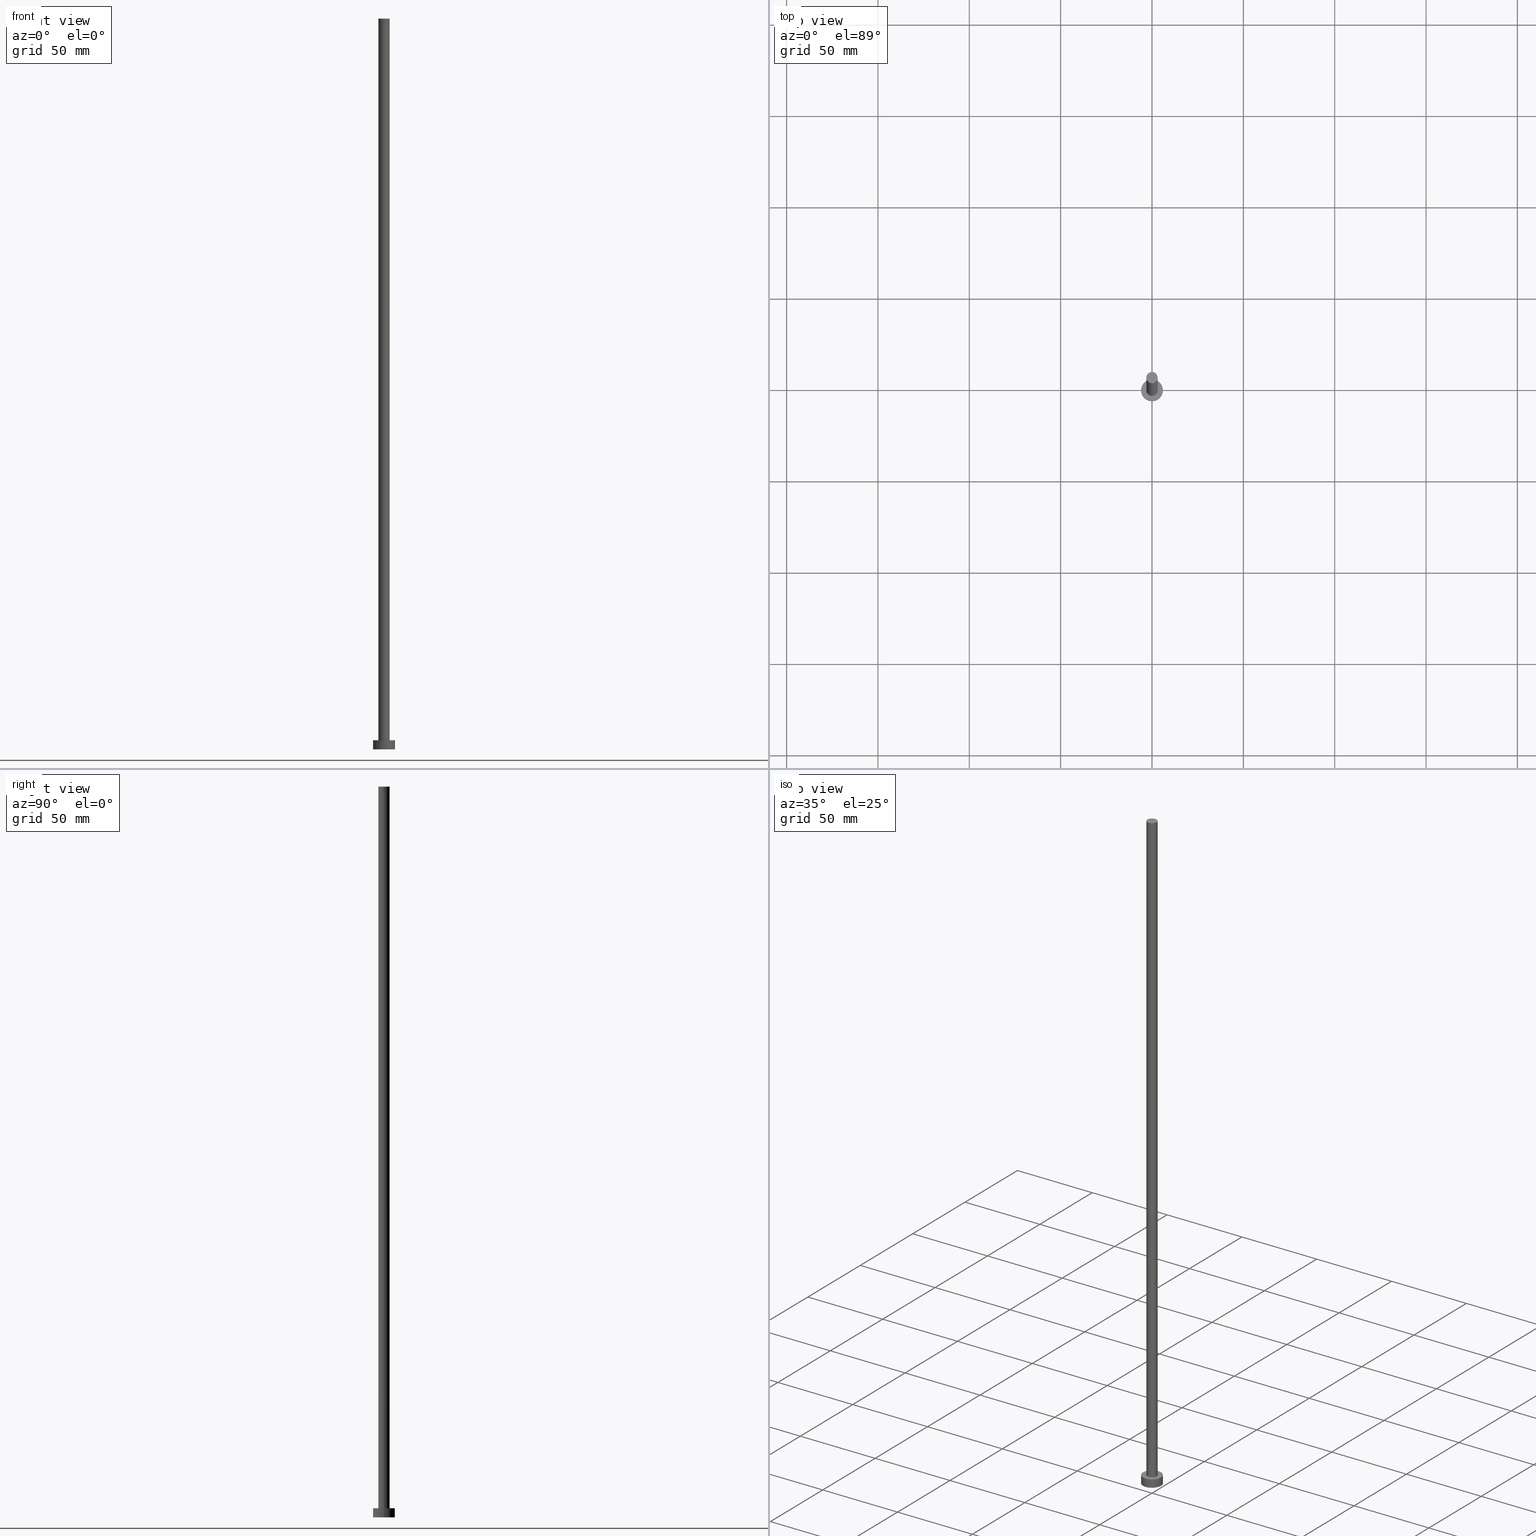
[diagram: canonical four-view strip — front | top / right | iso, engineering-drawing reading convention]
A machine part, canonical four-view strip (front | top / right | iso — engineering-drawing reading convention). The complete STEP part file that produces these views, byte-faithful:
ISO-10303-21;
HEADER;
FILE_DESCRIPTION (( 'STEP AP203' ),
    '1' );
FILE_NAME ('1fb7.STEP',
    '2023-02-13T15:19:55',
    ( '' ),
    ( '' ),
    'SwSTEP 2.0',
    'SolidWorks 2019',
    '' );
FILE_SCHEMA (( 'CONFIG_CONTROL_DESIGN' ));
ENDSEC;

DATA;
#1 = CLOSED_SHELL ( 'NONE', ( #254, #13, #30, #91, #153, #172, #225 ) ) ;
#2 = PERSON_AND_ORGANIZATION ( #219, #96 ) ;
#3 = ORIENTED_EDGE ( 'NONE', *, *, #145, .T. ) ;
#4 = DATE_AND_TIME ( #134, #10 ) ;
#5 = PERSON_AND_ORGANIZATION_ROLE ( 'design_supplier' ) ;
#6 = ORIENTED_EDGE ( 'NONE', *, *, #230, .F. ) ;
#7 = EDGE_LOOP ( 'NONE', ( #122, #103 ) ) ;
#8 = CARTESIAN_POINT ( 'NONE',  ( 3.100000000000000089, 3.796405077356793932E-16, 400.0000000000000000 ) ) ;
#9 = DIRECTION ( 'NONE',  ( 0.000000000000000000, 0.000000000000000000, 1.000000000000000000 ) ) ;
#10 = LOCAL_TIME ( 16, 19, 55.00000000000000000, #55 ) ;
#11 = PRODUCT_DEFINITION_FORMATION_WITH_SPECIFIED_SOURCE ( 'LIBOVOLN�', '', #119, .NOT_KNOWN. ) ;
#12 = AXIS2_PLACEMENT_3D ( 'NONE', #14, #163, #226 ) ;
#13 = ADVANCED_FACE ( 'NONE', ( #83 ), #223, .T. ) ;
#14 = CARTESIAN_POINT ( 'NONE',  ( 0.000000000000000000, 0.000000000000000000, 400.0000000000000000 ) ) ;
#15 = CARTESIAN_POINT ( 'NONE',  ( -6.000000000000000888, 0.000000000000000000, 5.000000000000000000 ) ) ;
#16 = CC_DESIGN_PERSON_AND_ORGANIZATION_ASSIGNMENT ( #93, #36, ( #11 ) ) ;
#17 = ORIENTED_EDGE ( 'NONE', *, *, #120, .T. ) ;
#18 = SHAPE_DEFINITION_REPRESENTATION ( #54, #184 ) ;
#19 = DATE_AND_TIME ( #195, #187 ) ;
#20 = PERSON_AND_ORGANIZATION_ROLE ( 'classification_officer' ) ;
#21 = CARTESIAN_POINT ( 'NONE',  ( 0.000000000000000000, 0.000000000000000000, 5.000000000000000000 ) ) ;
#22 = SECURITY_CLASSIFICATION ( '', '', #197 ) ;
#23 = LINE ( 'NONE', #202, #85 ) ;
#24 = VERTEX_POINT ( 'NONE', #229 ) ;
#25 = DIRECTION ( 'NONE',  ( -0.000000000000000000, -0.000000000000000000, -1.000000000000000000 ) ) ;
#26 = CIRCLE ( 'NONE', #131, 6.000000000000000888 ) ;
#27 = DIRECTION ( 'NONE',  ( -1.000000000000000000, 0.000000000000000000, 0.000000000000000000 ) ) ;
#28 = CARTESIAN_POINT ( 'NONE',  ( 0.000000000000000000, 0.000000000000000000, 0.000000000000000000 ) ) ;
#29 = PLANE ( 'NONE',  #111 ) ;
#30 = ADVANCED_FACE ( 'NONE', ( #64 ), #162, .T. ) ;
#31 = PERSON_AND_ORGANIZATION_ROLE ( 'design_owner' ) ;
#32 = EDGE_LOOP ( 'NONE', ( #78, #155, #141, #56 ) ) ;
#33 = MECHANICAL_CONTEXT ( 'NONE', #49, 'mechanical' ) ;
#34 = APPROVAL_STATUS ( 'not_yet_approved' ) ;
#35 = EDGE_LOOP ( 'NONE', ( #194, #245 ) ) ;
#36 = PERSON_AND_ORGANIZATION_ROLE ( 'creator' ) ;
#37 = ORIENTED_EDGE ( 'NONE', *, *, #72, .T. ) ;
#38 = ORIENTED_EDGE ( 'NONE', *, *, #192, .T. ) ;
#39 = UNCERTAINTY_MEASURE_WITH_UNIT (LENGTH_MEASURE( 1.000000000000000082E-05 ), #128, 'distance_accuracy_value', 'NONE');
#40 = APPROVAL ( #34, 'NEUR�EN�' ) ;
#41 = APPROVAL_DATE_TIME ( #154, #207 ) ;
#42 = FACE_OUTER_BOUND ( 'NONE', #7, .T. ) ;
#43 = CARTESIAN_POINT ( 'NONE',  ( 0.000000000000000000, 0.000000000000000000, 5.000000000000000000 ) ) ;
#44 = LINE ( 'NONE', #201, #81 ) ;
#45 = CARTESIAN_POINT ( 'NONE',  ( 0.000000000000000000, 0.000000000000000000, 5.000000000000000000 ) ) ;
#46 = EDGE_LOOP ( 'NONE', ( #176, #57, #37, #62 ) ) ;
#47 = AXIS2_PLACEMENT_3D ( 'NONE', #124, #143, #247 ) ;
#48 = DIRECTION ( 'NONE',  ( -0.000000000000000000, -0.000000000000000000, -1.000000000000000000 ) ) ;
#49 = APPLICATION_CONTEXT ( 'configuration controlled 3d designs of mechanical parts and assemblies' ) ;
#50 = CARTESIAN_POINT ( 'NONE',  ( 6.000000000000000888, 7.347880794884120722E-16, 0.000000000000000000 ) ) ;
#51 = AXIS2_PLACEMENT_3D ( 'NONE', #107, #106, #232 ) ;
#52 = CIRCLE ( 'NONE', #70, 3.100000000000000089 ) ;
#53 = EDGE_CURVE ( 'NONE', #214, #191, #26, .T. ) ;
#54 = PRODUCT_DEFINITION_SHAPE ( 'NONE', 'NONE',  #160 ) ;
#55 = COORDINATED_UNIVERSAL_TIME_OFFSET ( 1, 0, .AHEAD. ) ;
#56 = ORIENTED_EDGE ( 'NONE', *, *, #165, .T. ) ;
#57 = ORIENTED_EDGE ( 'NONE', *, *, #138, .T. ) ;
#58 = PRODUCT_RELATED_PRODUCT_CATEGORY ( 'detail', '', ( #119 ) ) ;
#59 = CARTESIAN_POINT ( 'NONE',  ( 0.000000000000000000, 0.000000000000000000, 5.000000000000000000 ) ) ;
#60 = DIRECTION ( 'NONE',  ( 0.000000000000000000, 0.000000000000000000, 1.000000000000000000 ) ) ;
#61 = FACE_BOUND ( 'NONE', #35, .T. ) ;
#62 = ORIENTED_EDGE ( 'NONE', *, *, #147, .F. ) ;
#63 = AXIS2_PLACEMENT_3D ( 'NONE', #252, #129, #168 ) ;
#64 = FACE_OUTER_BOUND ( 'NONE', #32, .T. ) ;
#65 = DIRECTION ( 'NONE',  ( 0.000000000000000000, 0.000000000000000000, 1.000000000000000000 ) ) ;
#66 = MANIFOLD_SOLID_BREP ( 'P�idat vysunut�m3', #1 ) ;
#67 = VECTOR ( 'NONE', #251, 1000.000000000000000 ) ;
#68 = CIRCLE ( 'NONE', #88, 6.000000000000000888 ) ;
#69 = CYLINDRICAL_SURFACE ( 'NONE', #63, 3.100000000000000089 ) ;
#70 = AXIS2_PLACEMENT_3D ( 'NONE', #246, #9, #146 ) ;
#71 = DIRECTION ( 'NONE',  ( 1.000000000000000000, 0.000000000000000000, 0.000000000000000000 ) ) ;
#72 = EDGE_CURVE ( 'NONE', #110, #24, #52, .T. ) ;
#73 = APPROVAL_ROLE ( '' ) ;
#74 = EDGE_LOOP ( 'NONE', ( #98, #6 ) ) ;
#75 = APPROVAL_DATE_TIME ( #4, #40 ) ;
#76 = PERSON_AND_ORGANIZATION ( #219, #96 ) ;
#77 = VERTEX_POINT ( 'NONE', #8 ) ;
#78 = ORIENTED_EDGE ( 'NONE', *, *, #192, .F. ) ;
#79 = APPLICATION_CONTEXT ( 'configuration controlled 3d designs of mechanical parts and assemblies' ) ;
#80 = DIRECTION ( 'NONE',  ( 1.000000000000000000, 0.000000000000000000, 0.000000000000000000 ) ) ;
#81 = VECTOR ( 'NONE', #99, 1000.000000000000000 ) ;
#82 = DIRECTION ( 'NONE',  ( 1.000000000000000000, 0.000000000000000000, -0.000000000000000000 ) ) ;
#83 = FACE_OUTER_BOUND ( 'NONE', #220, .T. ) ;
#84 = APPROVAL_PERSON_ORGANIZATION ( #2, #227, #73 ) ;
#85 = VECTOR ( 'NONE', #100, 1000.000000000000000 ) ;
#86 = FACE_OUTER_BOUND ( 'NONE', #115, .T. ) ;
#87 = DIRECTION ( 'NONE',  ( 1.000000000000000000, 0.000000000000000000, 0.000000000000000000 ) ) ;
#88 = AXIS2_PLACEMENT_3D ( 'NONE', #150, #236, #87 ) ;
#89 = LINE ( 'NONE', #149, #238 ) ;
#90 = CC_DESIGN_PERSON_AND_ORGANIZATION_ASSIGNMENT ( #116, #109, ( #160 ) ) ;
#91 = ADVANCED_FACE ( 'NONE', ( #61, #42 ), #231, .T. ) ;
#92 = LOCAL_TIME ( 16, 19, 55.00000000000000000, #222 ) ;
#93 = PERSON_AND_ORGANIZATION ( #219, #96 ) ;
#94 = DIRECTION ( 'NONE',  ( 0.000000000000000000, 0.000000000000000000, 1.000000000000000000 ) ) ;
#95 = APPROVAL_ROLE ( '' ) ;
#96 = ORGANIZATION ( 'NEUR�EN�', 'NEUR�EN�', '' ) ;
#97 = COORDINATED_UNIVERSAL_TIME_OFFSET ( 1, 0, .AHEAD. ) ;
#98 = ORIENTED_EDGE ( 'NONE', *, *, #165, .F. ) ;
#99 = DIRECTION ( 'NONE',  ( -0.000000000000000000, -0.000000000000000000, -1.000000000000000000 ) ) ;
#100 = DIRECTION ( 'NONE',  ( -0.000000000000000000, -0.000000000000000000, -1.000000000000000000 ) ) ;
#101 = CIRCLE ( 'NONE', #51, 3.100000000000000089 ) ;
#102 = CARTESIAN_POINT ( 'NONE',  ( 0.000000000000000000, 0.000000000000000000, 0.000000000000000000 ) ) ;
#103 = ORIENTED_EDGE ( 'NONE', *, *, #140, .T. ) ;
#104 = CIRCLE ( 'NONE', #242, 6.000000000000000888 ) ;
#105 = LINE ( 'NONE', #169, #67 ) ;
#106 = DIRECTION ( 'NONE',  ( 0.000000000000000000, 0.000000000000000000, 1.000000000000000000 ) ) ;
#107 = CARTESIAN_POINT ( 'NONE',  ( 0.000000000000000000, 0.000000000000000000, 400.0000000000000000 ) ) ;
#108 = FACE_OUTER_BOUND ( 'NONE', #239, .T. ) ;
#109 = PERSON_AND_ORGANIZATION_ROLE ( 'creator' ) ;
#110 = VERTEX_POINT ( 'NONE', #142 ) ;
#111 = AXIS2_PLACEMENT_3D ( 'NONE', #237, #190, #171 ) ;
#112 = AXIS2_PLACEMENT_3D ( 'NONE', #43, #125, #126 ) ;
#113 = APPLICATION_PROTOCOL_DEFINITION ( 'international standard', 'config_control_design', 1994, #49 ) ;
#114 = CALENDAR_DATE ( 2023, 13, 2 ) ;
#115 = EDGE_LOOP ( 'NONE', ( #250, #139, #178, #3 ) ) ;
#116 = PERSON_AND_ORGANIZATION ( #219, #96 ) ;
#117 = PERSON_AND_ORGANIZATION ( #219, #96 ) ;
#118 = ORIENTED_EDGE ( 'NONE', *, *, #140, .F. ) ;
#119 = PRODUCT ( '1fb7', '1fb7', '', ( #33 ) ) ;
#120 = EDGE_CURVE ( 'NONE', #212, #77, #198, .T. ) ;
#121 = AXIS2_PLACEMENT_3D ( 'NONE', #189, #206, #27 ) ;
#122 = ORIENTED_EDGE ( 'NONE', *, *, #53, .T. ) ;
#123 = DATE_AND_TIME ( #114, #249 ) ;
#124 = CARTESIAN_POINT ( 'NONE',  ( 0.000000000000000000, 0.000000000000000000, 5.000000000000000000 ) ) ;
#125 = DIRECTION ( 'NONE',  ( 0.000000000000000000, 0.000000000000000000, 1.000000000000000000 ) ) ;
#126 = DIRECTION ( 'NONE',  ( 1.000000000000000000, 0.000000000000000000, 0.000000000000000000 ) ) ;
#127 = DIRECTION ( 'NONE',  ( 1.000000000000000000, 0.000000000000000000, 0.000000000000000000 ) ) ;
#128 =( LENGTH_UNIT ( ) NAMED_UNIT ( * ) SI_UNIT ( .MILLI., .METRE. ) );
#129 = DIRECTION ( 'NONE',  ( -0.000000000000000000, -0.000000000000000000, -1.000000000000000000 ) ) ;
#130 = LOCAL_TIME ( 16, 19, 55.00000000000000000, #196 ) ;
#131 = AXIS2_PLACEMENT_3D ( 'NONE', #21, #180, #167 ) ;
#132 = CC_DESIGN_APPROVAL ( #227, ( #22 ) ) ;
#133 = CARTESIAN_POINT ( 'NONE',  ( 0.000000000000000000, 0.000000000000000000, 0.000000000000000000 ) ) ;
#134 = CALENDAR_DATE ( 2023, 13, 2 ) ;
#135 = AXIS2_PLACEMENT_3D ( 'NONE', #224, #188, #164 ) ;
#136 = CC_DESIGN_APPROVAL ( #207, ( #11 ) ) ;
#137 = APPLICATION_PROTOCOL_DEFINITION ( 'international standard', 'config_control_design', 1994, #79 ) ;
#138 = EDGE_CURVE ( 'NONE', #77, #110, #44, .T. ) ;
#139 = ORIENTED_EDGE ( 'NONE', *, *, #120, .F. ) ;
#140 = EDGE_CURVE ( 'NONE', #191, #214, #104, .T. ) ;
#141 = ORIENTED_EDGE ( 'NONE', *, *, #244, .T. ) ;
#142 = CARTESIAN_POINT ( 'NONE',  ( 3.100000000000000089, 3.796405077356793932E-16, 5.000000000000000000 ) ) ;
#143 = DIRECTION ( 'NONE',  ( -0.000000000000000000, -0.000000000000000000, -1.000000000000000000 ) ) ;
#144 = CIRCLE ( 'NONE', #157, 6.000000000000000888 ) ;
#145 = EDGE_CURVE ( 'NONE', #24, #110, #234, .T. ) ;
#146 = DIRECTION ( 'NONE',  ( 1.000000000000000000, 0.000000000000000000, 0.000000000000000000 ) ) ;
#147 = EDGE_CURVE ( 'NONE', #212, #24, #23, .T. ) ;
#148 = CARTESIAN_POINT ( 'NONE',  ( 6.000000000000000888, 7.347880794884120722E-16, 5.000000000000000000 ) ) ;
#149 = CARTESIAN_POINT ( 'NONE',  ( -6.000000000000000888, 0.000000000000000000, 5.000000000000000000 ) ) ;
#150 = CARTESIAN_POINT ( 'NONE',  ( 0.000000000000000000, 0.000000000000000000, 0.000000000000000000 ) ) ;
#151 =( NAMED_UNIT ( * ) SI_UNIT ( $, .STERADIAN. ) SOLID_ANGLE_UNIT ( ) );
#152 = CC_DESIGN_APPROVAL ( #40, ( #160 ) ) ;
#153 = ADVANCED_FACE ( 'NONE', ( #203 ), #204, .F. ) ;
#154 = DATE_AND_TIME ( #158, #92 ) ;
#155 = ORIENTED_EDGE ( 'NONE', *, *, #53, .F. ) ;
#156 = COORDINATED_UNIVERSAL_TIME_OFFSET ( 1, 0, .AHEAD. ) ;
#157 = AXIS2_PLACEMENT_3D ( 'NONE', #28, #65, #127 ) ;
#158 = CALENDAR_DATE ( 2023, 13, 2 ) ;
#159 = ORIENTED_EDGE ( 'NONE', *, *, #230, .T. ) ;
#160 = PRODUCT_DEFINITION ( 'NEZN�M�', '', #11, #179 ) ;
#161 = APPROVAL_ROLE ( '' ) ;
#162 = CYLINDRICAL_SURFACE ( 'NONE', #228, 6.000000000000000888 ) ;
#163 = DIRECTION ( 'NONE',  ( 0.000000000000000000, 0.000000000000000000, 1.000000000000000000 ) ) ;
#164 = DIRECTION ( 'NONE',  ( 1.000000000000000000, 0.000000000000000000, -0.000000000000000000 ) ) ;
#165 = EDGE_CURVE ( 'NONE', #205, #218, #68, .T. ) ;
#166 = AXIS2_PLACEMENT_3D ( 'NONE', #133, #94, #71 ) ;
#167 = DIRECTION ( 'NONE',  ( 1.000000000000000000, 0.000000000000000000, 0.000000000000000000 ) ) ;
#168 = DIRECTION ( 'NONE',  ( -1.000000000000000000, 0.000000000000000000, 0.000000000000000000 ) ) ;
#169 = CARTESIAN_POINT ( 'NONE',  ( 6.000000000000000888, 7.347880794884120722E-16, 5.000000000000000000 ) ) ;
#170 = FACE_OUTER_BOUND ( 'NONE', #46, .T. ) ;
#171 = DIRECTION ( 'NONE',  ( 1.000000000000000000, 0.000000000000000000, -0.000000000000000000 ) ) ;
#172 = ADVANCED_FACE ( 'NONE', ( #86 ), #69, .T. ) ;
#173 = PERSON_AND_ORGANIZATION ( #219, #96 ) ;
#174 = CC_DESIGN_PERSON_AND_ORGANIZATION_ASSIGNMENT ( #173, #31, ( #119 ) ) ;
#175 = DATE_TIME_ROLE ( 'creation_date' ) ;
#176 = ORIENTED_EDGE ( 'NONE', *, *, #199, .F. ) ;
#177 = DATE_AND_TIME ( #241, #130 ) ;
#178 = ORIENTED_EDGE ( 'NONE', *, *, #147, .T. ) ;
#179 = DESIGN_CONTEXT ( 'detailed design', #79, 'design' ) ;
#180 = DIRECTION ( 'NONE',  ( 0.000000000000000000, 0.000000000000000000, 1.000000000000000000 ) ) ;
#181 = CC_DESIGN_PERSON_AND_ORGANIZATION_ASSIGNMENT ( #117, #5, ( #11 ) ) ;
#182 = AXIS2_PLACEMENT_3D ( 'NONE', #102, #185, #82 ) ;
#183 = DIRECTION ( 'NONE',  ( -1.000000000000000000, 0.000000000000000000, 0.000000000000000000 ) ) ;
#184 = ADVANCED_BREP_SHAPE_REPRESENTATION ( '1fb7', ( #66, #166 ), #221 ) ;
#185 = DIRECTION ( 'NONE',  ( 0.000000000000000000, 0.000000000000000000, 1.000000000000000000 ) ) ;
#186 = ORIENTED_EDGE ( 'NONE', *, *, #199, .T. ) ;
#187 = LOCAL_TIME ( 16, 19, 55.00000000000000000, #156 ) ;
#188 = DIRECTION ( 'NONE',  ( 0.000000000000000000, 0.000000000000000000, 1.000000000000000000 ) ) ;
#189 = CARTESIAN_POINT ( 'NONE',  ( 0.000000000000000000, 0.000000000000000000, 400.0000000000000000 ) ) ;
#190 = DIRECTION ( 'NONE',  ( 0.000000000000000000, 0.000000000000000000, 1.000000000000000000 ) ) ;
#191 = VERTEX_POINT ( 'NONE', #148 ) ;
#192 = EDGE_CURVE ( 'NONE', #191, #218, #105, .T. ) ;
#193 = APPROVAL_DATE_TIME ( #177, #227 ) ;
#194 = ORIENTED_EDGE ( 'NONE', *, *, #145, .F. ) ;
#195 = CALENDAR_DATE ( 2023, 13, 2 ) ;
#196 = COORDINATED_UNIVERSAL_TIME_OFFSET ( 1, 0, .AHEAD. ) ;
#197 = SECURITY_CLASSIFICATION_LEVEL ( 'unclassified' ) ;
#198 = CIRCLE ( 'NONE', #12, 3.100000000000000089 ) ;
#199 = EDGE_CURVE ( 'NONE', #77, #212, #101, .T. ) ;
#200 = DATE_TIME_ROLE ( 'classification_date' ) ;
#201 = CARTESIAN_POINT ( 'NONE',  ( 3.100000000000000089, 3.796405077356793932E-16, 400.0000000000000000 ) ) ;
#202 = CARTESIAN_POINT ( 'NONE',  ( -3.100000000000000089, 0.000000000000000000, 400.0000000000000000 ) ) ;
#203 = FACE_OUTER_BOUND ( 'NONE', #74, .T. ) ;
#204 = PLANE ( 'NONE',  #182 ) ;
#205 = VERTEX_POINT ( 'NONE', #210 ) ;
#206 = DIRECTION ( 'NONE',  ( -0.000000000000000000, -0.000000000000000000, -1.000000000000000000 ) ) ;
#207 = APPROVAL ( #213, 'NEUR�EN�' ) ;
#208 =( NAMED_UNIT ( * ) PLANE_ANGLE_UNIT ( ) SI_UNIT ( $, .RADIAN. ) );
#209 = CC_DESIGN_PERSON_AND_ORGANIZATION_ASSIGNMENT ( #217, #20, ( #22 ) ) ;
#210 = CARTESIAN_POINT ( 'NONE',  ( -6.000000000000000888, 0.000000000000000000, 0.000000000000000000 ) ) ;
#211 = APPROVAL_PERSON_ORGANIZATION ( #240, #40, #95 ) ;
#212 = VERTEX_POINT ( 'NONE', #235 ) ;
#213 = APPROVAL_STATUS ( 'not_yet_approved' ) ;
#214 = VERTEX_POINT ( 'NONE', #15 ) ;
#215 = APPROVAL_STATUS ( 'not_yet_approved' ) ;
#216 = ORIENTED_EDGE ( 'NONE', *, *, #244, .F. ) ;
#217 = PERSON_AND_ORGANIZATION ( #219, #96 ) ;
#218 = VERTEX_POINT ( 'NONE', #50 ) ;
#219 = PERSON ( 'NEUR�EN�', 'NEUR�EN�', 'NEUR�EN�', ('NEUR�EN�'), ('NEUR�EN�'), ('NEUR�EN�') ) ;
#220 = EDGE_LOOP ( 'NONE', ( #118, #38, #159, #216 ) ) ;
#221 =( GEOMETRIC_REPRESENTATION_CONTEXT ( 3 ) GLOBAL_UNCERTAINTY_ASSIGNED_CONTEXT ( ( #39 ) ) GLOBAL_UNIT_ASSIGNED_CONTEXT ( ( #128, #208, #151 ) ) REPRESENTATION_CONTEXT ( 'NONE', 'WORKASPACE' ) );
#222 = COORDINATED_UNIVERSAL_TIME_OFFSET ( 1, 0, .AHEAD. ) ;
#223 = CYLINDRICAL_SURFACE ( 'NONE', #47, 6.000000000000000888 ) ;
#224 = CARTESIAN_POINT ( 'NONE',  ( 0.000000000000000000, 0.000000000000000000, 5.000000000000000000 ) ) ;
#225 = ADVANCED_FACE ( 'NONE', ( #108 ), #29, .T. ) ;
#226 = DIRECTION ( 'NONE',  ( 1.000000000000000000, 0.000000000000000000, 0.000000000000000000 ) ) ;
#227 = APPROVAL ( #215, 'NEUR�EN�' ) ;
#228 = AXIS2_PLACEMENT_3D ( 'NONE', #59, #25, #183 ) ;
#229 = CARTESIAN_POINT ( 'NONE',  ( -3.100000000000000089, 0.000000000000000000, 5.000000000000000000 ) ) ;
#230 = EDGE_CURVE ( 'NONE', #218, #205, #144, .T. ) ;
#231 = PLANE ( 'NONE',  #135 ) ;
#232 = DIRECTION ( 'NONE',  ( 1.000000000000000000, 0.000000000000000000, 0.000000000000000000 ) ) ;
#233 = CC_DESIGN_DATE_AND_TIME_ASSIGNMENT ( #19, #175, ( #160 ) ) ;
#234 = CIRCLE ( 'NONE', #112, 3.100000000000000089 ) ;
#235 = CARTESIAN_POINT ( 'NONE',  ( -3.100000000000000089, 0.000000000000000000, 400.0000000000000000 ) ) ;
#236 = DIRECTION ( 'NONE',  ( 0.000000000000000000, 0.000000000000000000, 1.000000000000000000 ) ) ;
#237 = CARTESIAN_POINT ( 'NONE',  ( 0.000000000000000000, 0.000000000000000000, 400.0000000000000000 ) ) ;
#238 = VECTOR ( 'NONE', #48, 1000.000000000000000 ) ;
#239 = EDGE_LOOP ( 'NONE', ( #17, #186 ) ) ;
#240 = PERSON_AND_ORGANIZATION ( #219, #96 ) ;
#241 = CALENDAR_DATE ( 2023, 13, 2 ) ;
#242 = AXIS2_PLACEMENT_3D ( 'NONE', #45, #60, #80 ) ;
#243 = CC_DESIGN_DATE_AND_TIME_ASSIGNMENT ( #123, #200, ( #22 ) ) ;
#244 = EDGE_CURVE ( 'NONE', #214, #205, #89, .T. ) ;
#245 = ORIENTED_EDGE ( 'NONE', *, *, #72, .F. ) ;
#246 = CARTESIAN_POINT ( 'NONE',  ( 0.000000000000000000, 0.000000000000000000, 5.000000000000000000 ) ) ;
#247 = DIRECTION ( 'NONE',  ( -1.000000000000000000, 0.000000000000000000, 0.000000000000000000 ) ) ;
#248 = CC_DESIGN_SECURITY_CLASSIFICATION ( #22, ( #11 ) ) ;
#249 = LOCAL_TIME ( 16, 19, 55.00000000000000000, #97 ) ;
#250 = ORIENTED_EDGE ( 'NONE', *, *, #138, .F. ) ;
#251 = DIRECTION ( 'NONE',  ( -0.000000000000000000, -0.000000000000000000, -1.000000000000000000 ) ) ;
#252 = CARTESIAN_POINT ( 'NONE',  ( 0.000000000000000000, 0.000000000000000000, 400.0000000000000000 ) ) ;
#253 = APPROVAL_PERSON_ORGANIZATION ( #76, #207, #161 ) ;
#254 = ADVANCED_FACE ( 'NONE', ( #170 ), #255, .T. ) ;
#255 = CYLINDRICAL_SURFACE ( 'NONE', #121, 3.100000000000000089 ) ;
ENDSEC;
END-ISO-10303-21;
